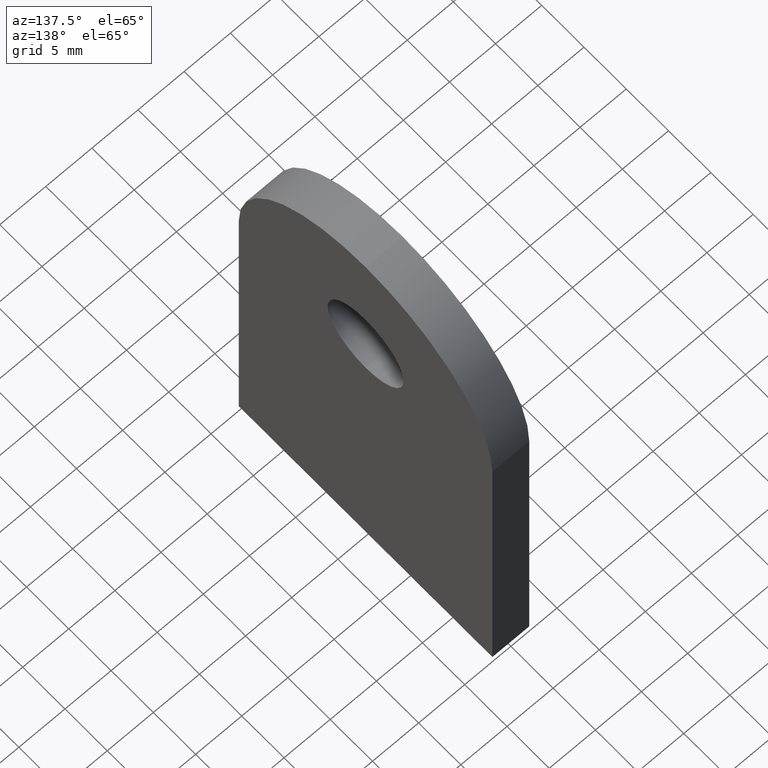
[diagram: clean part render]
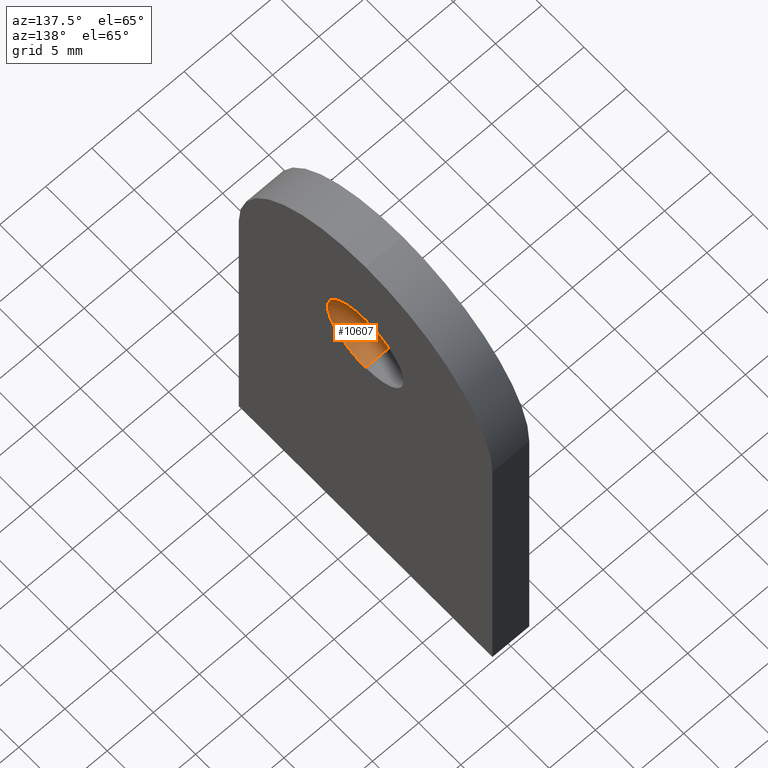
[diagram: same view with one face highlighted and labeled with its STEP entity id]
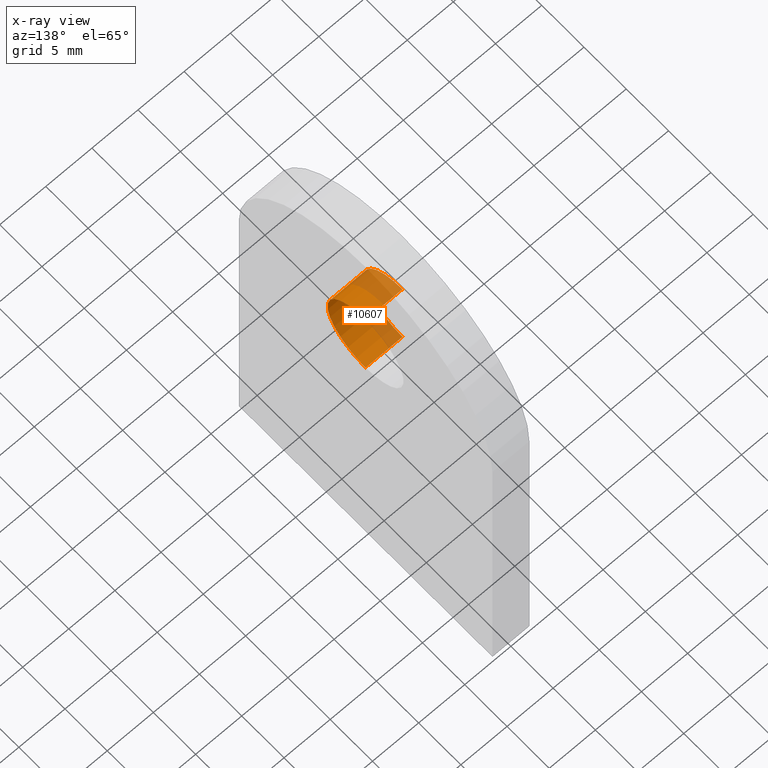
[diagram: x-ray of the same camera — body ghosted, the highlighted face saturated]
A machine part, auxiliary view. The second image highlights one B-rep face of the part: STEP entity #10607.
The next image is the same camera in x-ray: the body ghosted, the highlighted face saturated — about 35% of this face is hidden behind the body in this view.
In plain terms, the highlighted cylindrical surface (partial cylindrical patch) has radius 4.5 mm, axis along (1, -0, -0).
Its self-contained STEP definition (entity closure, byte-faithful):
#562 = ORIENTED_EDGE ( 'NONE', *, *, #7187, .T. ) ;
#707 = DIRECTION ( 'NONE',  ( 1.000000000000000000, 0.0000000000000000000, 0.0000000000000000000 ) ) ;
#822 = CYLINDRICAL_SURFACE ( 'NONE', #1331, 4.500000000000000900 ) ;
#882 = ORIENTED_EDGE ( 'NONE', *, *, #12629, .F. ) ;
#1331 = AXIS2_PLACEMENT_3D ( 'NONE', #9221, #11244, #12251 ) ;
#2074 = VERTEX_POINT ( 'NONE', #4142 ) ;
#2460 = LINE ( 'NONE', #7226, #8879 ) ;
#2700 = CARTESIAN_POINT ( 'NONE',  ( -2.000000000000000000, 0.0000000000000000000, 35.50000000000000000 ) ) ;
#2856 = DIRECTION ( 'NONE',  ( 1.000000000000000000, -0.0000000000000000000, -0.0000000000000000000 ) ) ;
#3182 = CIRCLE ( 'NONE', #6719, 4.500000000000000900 ) ;
#3731 = VERTEX_POINT ( 'NONE', #9494 ) ;
#4054 = DIRECTION ( 'NONE',  ( 0.0000000000000000000, 0.0000000000000000000, -1.000000000000000000 ) ) ;
#4142 = CARTESIAN_POINT ( 'NONE',  ( 2.000000000000000000, 0.0000000000000000000, 30.99999999999999600 ) ) ;
#4993 = VERTEX_POINT ( 'NONE', #8441 ) ;
#6577 = CARTESIAN_POINT ( 'NONE',  ( -2.000000000000000000, 5.510910596163087600E-016, 40.00000000000000000 ) ) ;
#6719 = AXIS2_PLACEMENT_3D ( 'NONE', #2700, #707, #11753 ) ;
#7165 = CIRCLE ( 'NONE', #11428, 4.500000000000000900 ) ;
#7166 = ORIENTED_EDGE ( 'NONE', *, *, #7844, .T. ) ;
#7187 = EDGE_CURVE ( 'NONE', #3731, #2074, #7165, .T. ) ;
#7226 = CARTESIAN_POINT ( 'NONE',  ( -2.000000000000000000, 0.0000000000000000000, 30.99999999999999600 ) ) ;
#7356 = VECTOR ( 'NONE', #2856, 1000.000000000000000 ) ;
#7417 = EDGE_CURVE ( 'NONE', #4993, #2074, #2460, .T. ) ;
#7819 = LINE ( 'NONE', #8872, #7356 ) ;
#7844 = EDGE_CURVE ( 'NONE', #8604, #3731, #7819, .T. ) ;
#8441 = CARTESIAN_POINT ( 'NONE',  ( -2.000000000000000000, 0.0000000000000000000, 30.99999999999999600 ) ) ;
#8604 = VERTEX_POINT ( 'NONE', #6577 ) ;
#8872 = CARTESIAN_POINT ( 'NONE',  ( -2.000000000000000000, 5.510910596163090500E-016, 40.00000000000000000 ) ) ;
#8879 = VECTOR ( 'NONE', #12062, 1000.000000000000000 ) ;
#9221 = CARTESIAN_POINT ( 'NONE',  ( -2.000000000000000000, 0.0000000000000000000, 35.50000000000000000 ) ) ;
#9494 = CARTESIAN_POINT ( 'NONE',  ( 2.000000000000000000, 5.510910596163087600E-016, 40.00000000000000000 ) ) ;
#10190 = CARTESIAN_POINT ( 'NONE',  ( 2.000000000000000000, 0.0000000000000000000, 35.50000000000000000 ) ) ;
#10328 = ORIENTED_EDGE ( 'NONE', *, *, #7417, .F. ) ;
#10607 = ADVANCED_FACE ( 'NONE', ( #11686 ), #822, .F. ) ;
#11207 = DIRECTION ( 'NONE',  ( 1.000000000000000000, 0.0000000000000000000, 0.0000000000000000000 ) ) ;
#11244 = DIRECTION ( 'NONE',  ( 1.000000000000000000, -0.0000000000000000000, -0.0000000000000000000 ) ) ;
#11428 = AXIS2_PLACEMENT_3D ( 'NONE', #10190, #11207, #4054 ) ;
#11686 = FACE_OUTER_BOUND ( 'NONE', #12762, .T. ) ;
#11753 = DIRECTION ( 'NONE',  ( 0.0000000000000000000, 0.0000000000000000000, -1.000000000000000000 ) ) ;
#12062 = DIRECTION ( 'NONE',  ( 1.000000000000000000, -0.0000000000000000000, -0.0000000000000000000 ) ) ;
#12251 = DIRECTION ( 'NONE',  ( 0.0000000000000000000, 0.0000000000000000000, -1.000000000000000000 ) ) ;
#12629 = EDGE_CURVE ( 'NONE', #8604, #4993, #3182, .T. ) ;
#12762 = EDGE_LOOP ( 'NONE', ( #882, #7166, #562, #10328 ) ) ;